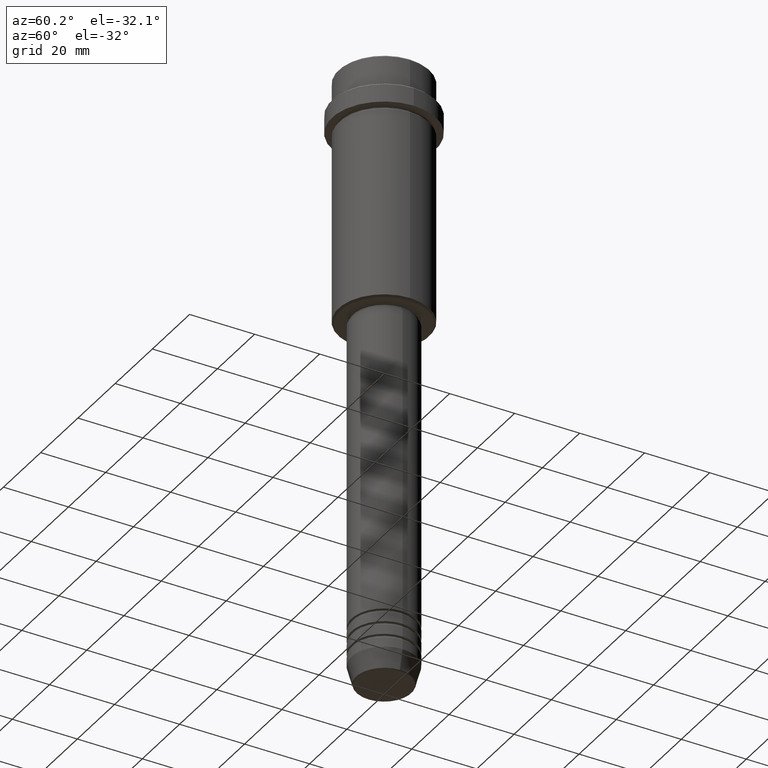
[diagram: clean part render]
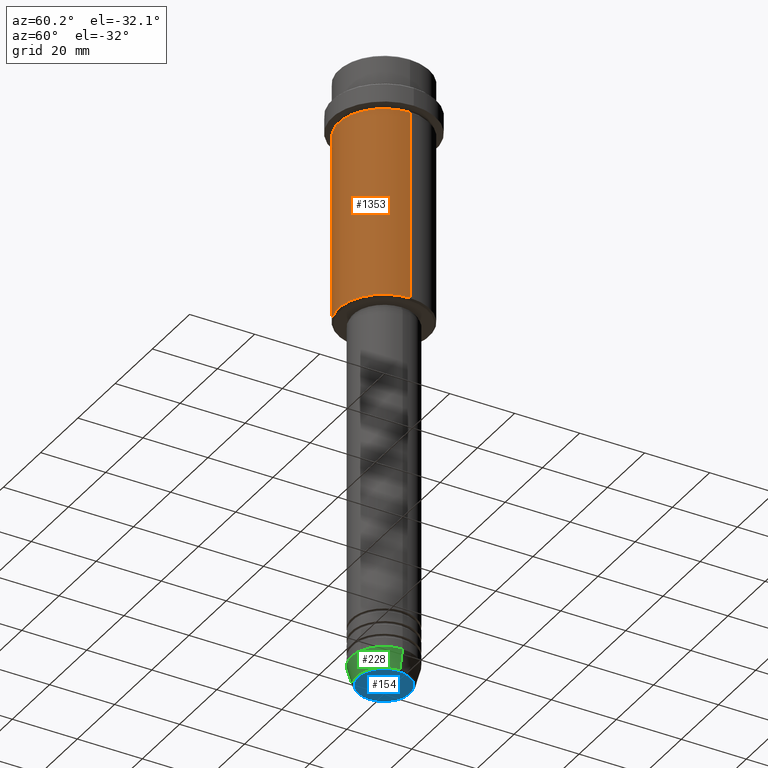
[diagram: same view with three faces highlighted in distinct colors, each labeled with its STEP entity id]
A machine part, auxiliary view with three faces highlighted in distinct colors.
Their STEP definitions:

[orange] entity #1353 — the highlighted cylindrical surface (partial cylindrical patch) has radius 14 mm, axis along (-0, -0, 1).
#27 = CARTESIAN_POINT ( 'NONE',  ( 0.000000000000000000, 0.000000000000000000, -75.50000000000000000 ) ) ;
#126 = CIRCLE ( 'NONE', #1371, 13.99999999999998757 ) ;
#205 = ORIENTED_EDGE ( 'NONE', *, *, #570, .T. ) ;
#237 = EDGE_CURVE ( 'NONE', #948, #926, #304, .T. ) ;
#304 = CIRCLE ( 'NONE', #555, 13.99999999999997513 ) ;
#311 = VECTOR ( 'NONE', #318, 1000.000000000000000 ) ;
#318 = DIRECTION ( 'NONE',  ( -0.000000000000000000, -0.000000000000000000, 1.000000000000000000 ) ) ;
#357 = ORIENTED_EDGE ( 'NONE', *, *, #1115, .F. ) ;
#366 = ORIENTED_EDGE ( 'NONE', *, *, #1300, .T. ) ;
#413 = LINE ( 'NONE', #827, #1316 ) ;
#421 = VERTEX_POINT ( 'NONE', #834 ) ;
#502 = CARTESIAN_POINT ( 'NONE',  ( 0.000000000000000000, 0.000000000000000000, 0.000000000000000000 ) ) ;
#545 = DIRECTION ( 'NONE',  ( -1.000000000000000000, 0.000000000000000000, 0.000000000000000000 ) ) ;
#555 = AXIS2_PLACEMENT_3D ( 'NONE', #1257, #1148, #1381 ) ;
#570 = EDGE_CURVE ( 'NONE', #817, #926, #413, .T. ) ;
#735 = CARTESIAN_POINT ( 'NONE',  ( -13.99999999999998757, 1.714505518806293060E-15, 0.000000000000000000 ) ) ;
#745 = ORIENTED_EDGE ( 'NONE', *, *, #237, .F. ) ;
#817 = VERTEX_POINT ( 'NONE', #1214 ) ;
#827 = CARTESIAN_POINT ( 'NONE',  ( 13.99999999999998757, 0.000000000000000000, 0.000000000000000000 ) ) ;
#834 = CARTESIAN_POINT ( 'NONE',  ( -13.99999999999998757, 1.714505518806293060E-15, -75.50000000000000000 ) ) ;
#850 = DIRECTION ( 'NONE',  ( -0.000000000000000000, -0.000000000000000000, 1.000000000000000000 ) ) ;
#866 = LINE ( 'NONE', #735, #311 ) ;
#924 = CARTESIAN_POINT ( 'NONE',  ( 13.99999999999997513, 0.000000000000000000, -17.00000000000000355 ) ) ;
#926 = VERTEX_POINT ( 'NONE', #924 ) ;
#932 = DIRECTION ( 'NONE',  ( -0.000000000000000000, -0.000000000000000000, 1.000000000000000000 ) ) ;
#948 = VERTEX_POINT ( 'NONE', #1382 ) ;
#1003 = AXIS2_PLACEMENT_3D ( 'NONE', #502, #932, #1026 ) ;
#1006 = DIRECTION ( 'NONE',  ( -0.000000000000000000, -0.000000000000000000, 1.000000000000000000 ) ) ;
#1026 = DIRECTION ( 'NONE',  ( 1.000000000000000000, 0.000000000000000000, 0.000000000000000000 ) ) ;
#1058 = EDGE_LOOP ( 'NONE', ( #357, #366, #205, #745 ) ) ;
#1115 = EDGE_CURVE ( 'NONE', #421, #948, #866, .T. ) ;
#1126 = CYLINDRICAL_SURFACE ( 'NONE', #1003, 13.99999999999998757 ) ;
#1148 = DIRECTION ( 'NONE',  ( -0.000000000000000000, -0.000000000000000000, 1.000000000000000000 ) ) ;
#1214 = CARTESIAN_POINT ( 'NONE',  ( 13.99999999999998757, 0.000000000000000000, -75.50000000000000000 ) ) ;
#1257 = CARTESIAN_POINT ( 'NONE',  ( 0.000000000000000000, 0.000000000000000000, -17.00000000000000355 ) ) ;
#1300 = EDGE_CURVE ( 'NONE', #421, #817, #126, .T. ) ;
#1316 = VECTOR ( 'NONE', #850, 1000.000000000000000 ) ;
#1344 = FACE_OUTER_BOUND ( 'NONE', #1058, .T. ) ;
#1353 = ADVANCED_FACE ( 'NONE', ( #1344 ), #1126, .T. ) ;
#1371 = AXIS2_PLACEMENT_3D ( 'NONE', #27, #1006, #545 ) ;
#1381 = DIRECTION ( 'NONE',  ( 1.000000000000000000, 0.000000000000000000, 0.000000000000000000 ) ) ;
#1382 = CARTESIAN_POINT ( 'NONE',  ( -13.99999999999997513, 1.714505518806292271E-15, -17.00000000000000355 ) ) ;

[blue] entity #154 — the highlighted planar face has unit normal (0, -0, 1).
#66 = PLANE ( 'NONE',  #1130 ) ;
#125 = CARTESIAN_POINT ( 'NONE',  ( -8.008641351423783306, 1.010348648938493172E-15, -190.0000000000000000 ) ) ;
#154 = ADVANCED_FACE ( 'NONE', ( #373 ), #66, .F. ) ;
#155 = DIRECTION ( 'NONE',  ( 0.000000000000000000, 0.000000000000000000, -1.000000000000000000 ) ) ;
#156 = CARTESIAN_POINT ( 'NONE',  ( 0.000000000000000000, 0.000000000000000000, -190.0000000000000000 ) ) ;
#216 = VERTEX_POINT ( 'NONE', #125 ) ;
#241 = CIRCLE ( 'NONE', #562, 8.008641351423783306 ) ;
#317 = CARTESIAN_POINT ( 'NONE',  ( 0.000000000000000000, 0.000000000000000000, -190.0000000000000000 ) ) ;
#319 = VERTEX_POINT ( 'NONE', #1232 ) ;
#373 = FACE_OUTER_BOUND ( 'NONE', #1224, .T. ) ;
#539 = ORIENTED_EDGE ( 'NONE', *, *, #925, .T. ) ;
#562 = AXIS2_PLACEMENT_3D ( 'NONE', #799, #155, #1241 ) ;
#662 = ORIENTED_EDGE ( 'NONE', *, *, #691, .T. ) ;
#691 = EDGE_CURVE ( 'NONE', #216, #319, #1206, .T. ) ;
#758 = DIRECTION ( 'NONE',  ( 1.000000000000000000, 0.000000000000000000, 0.000000000000000000 ) ) ;
#799 = CARTESIAN_POINT ( 'NONE',  ( 0.000000000000000000, 0.000000000000000000, -190.0000000000000000 ) ) ;
#870 = DIRECTION ( 'NONE',  ( 0.000000000000000000, 0.000000000000000000, -1.000000000000000000 ) ) ;
#880 = AXIS2_PLACEMENT_3D ( 'NONE', #317, #870, #758 ) ;
#925 = EDGE_CURVE ( 'NONE', #319, #216, #241, .T. ) ;
#1035 = DIRECTION ( 'NONE',  ( 1.000000000000000000, 0.000000000000000000, 0.000000000000000000 ) ) ;
#1053 = DIRECTION ( 'NONE',  ( 0.000000000000000000, -0.000000000000000000, 1.000000000000000000 ) ) ;
#1130 = AXIS2_PLACEMENT_3D ( 'NONE', #156, #1053, #1035 ) ;
#1206 = CIRCLE ( 'NONE', #880, 8.008641351423783306 ) ;
#1224 = EDGE_LOOP ( 'NONE', ( #539, #662 ) ) ;
#1232 = CARTESIAN_POINT ( 'NONE',  ( 8.008641351423783306, 0.000000000000000000, -190.0000000000000000 ) ) ;
#1241 = DIRECTION ( 'NONE',  ( 1.000000000000000000, 0.000000000000000000, 0.000000000000000000 ) ) ;

[green] entity #228 — the highlighted conical surface has half-angle 15 deg.
#35 = DIRECTION ( 'NONE',  ( 0.2588190451025211281, 0.000000000000000000, 0.9659258262890680902 ) ) ;
#103 = CARTESIAN_POINT ( 'NONE',  ( 0.000000000000000000, 0.000000000000000000, -189.6294095225512706 ) ) ;
#228 = ADVANCED_FACE ( 'NONE', ( #599 ), #1066, .T. ) ;
#249 = EDGE_LOOP ( 'NONE', ( #523, #1150, #915, #991 ) ) ;
#292 = CARTESIAN_POINT ( 'NONE',  ( 10.00000000000000000, 0.000000000000000000, -184.0000000000000000 ) ) ;
#323 = LINE ( 'NONE', #449, #930 ) ;
#330 = CARTESIAN_POINT ( 'NONE',  ( -8.491604264568309191, 1.132284198685156387E-15, -189.6294095225512706 ) ) ;
#333 = DIRECTION ( 'NONE',  ( 1.000000000000000000, 0.000000000000000000, 0.000000000000000000 ) ) ;
#408 = CARTESIAN_POINT ( 'NONE',  ( 0.000000000000000000, 0.000000000000000000, -184.0000000000000000 ) ) ;
#442 = AXIS2_PLACEMENT_3D ( 'NONE', #103, #1084, #1305 ) ;
#449 = CARTESIAN_POINT ( 'NONE',  ( 10.00000000000000000, 0.000000000000000000, -184.0000000000000000 ) ) ;
#455 = DIRECTION ( 'NONE',  ( -0.000000000000000000, -0.000000000000000000, 1.000000000000000000 ) ) ;
#490 = DIRECTION ( 'NONE',  ( -0.000000000000000000, -0.000000000000000000, 1.000000000000000000 ) ) ;
#523 = ORIENTED_EDGE ( 'NONE', *, *, #1080, .F. ) ;
#525 = DIRECTION ( 'NONE',  ( -0.2588190451025211281, 3.169619151431769872E-17, 0.9659258262890680902 ) ) ;
#564 = VECTOR ( 'NONE', #525, 1000.000000000000114 ) ;
#599 = FACE_OUTER_BOUND ( 'NONE', #249, .T. ) ;
#634 = CARTESIAN_POINT ( 'NONE',  ( -10.00000000000000000, 1.224646799147353256E-15, -184.0000000000000000 ) ) ;
#657 = EDGE_CURVE ( 'NONE', #714, #1093, #1042, .T. ) ;
#714 = VERTEX_POINT ( 'NONE', #330 ) ;
#730 = VERTEX_POINT ( 'NONE', #292 ) ;
#762 = CIRCLE ( 'NONE', #1091, 10.00000000000000000 ) ;
#861 = CARTESIAN_POINT ( 'NONE',  ( -10.00000000000000000, 1.224646799147353256E-15, -184.0000000000000000 ) ) ;
#915 = ORIENTED_EDGE ( 'NONE', *, *, #1308, .T. ) ;
#930 = VECTOR ( 'NONE', #35, 1000.000000000000114 ) ;
#965 = CARTESIAN_POINT ( 'NONE',  ( 8.491604264568309191, 0.000000000000000000, -189.6294095225512706 ) ) ;
#991 = ORIENTED_EDGE ( 'NONE', *, *, #1216, .F. ) ;
#1013 = CARTESIAN_POINT ( 'NONE',  ( 0.000000000000000000, 0.000000000000000000, -184.0000000000000000 ) ) ;
#1042 = CIRCLE ( 'NONE', #442, 8.491604264568309191 ) ;
#1065 = VERTEX_POINT ( 'NONE', #861 ) ;
#1066 = CONICAL_SURFACE ( 'NONE', #1246, 10.00000000000000000, 0.2617993877991498519 ) ;
#1078 = LINE ( 'NONE', #634, #564 ) ;
#1080 = EDGE_CURVE ( 'NONE', #714, #1065, #1078, .T. ) ;
#1084 = DIRECTION ( 'NONE',  ( -0.000000000000000000, -0.000000000000000000, 1.000000000000000000 ) ) ;
#1091 = AXIS2_PLACEMENT_3D ( 'NONE', #1013, #455, #333 ) ;
#1093 = VERTEX_POINT ( 'NONE', #965 ) ;
#1150 = ORIENTED_EDGE ( 'NONE', *, *, #657, .T. ) ;
#1216 = EDGE_CURVE ( 'NONE', #1065, #730, #762, .T. ) ;
#1246 = AXIS2_PLACEMENT_3D ( 'NONE', #408, #490, #1369 ) ;
#1305 = DIRECTION ( 'NONE',  ( 1.000000000000000000, 0.000000000000000000, 0.000000000000000000 ) ) ;
#1308 = EDGE_CURVE ( 'NONE', #1093, #730, #323, .T. ) ;
#1369 = DIRECTION ( 'NONE',  ( 1.000000000000000000, 0.000000000000000000, 0.000000000000000000 ) ) ;